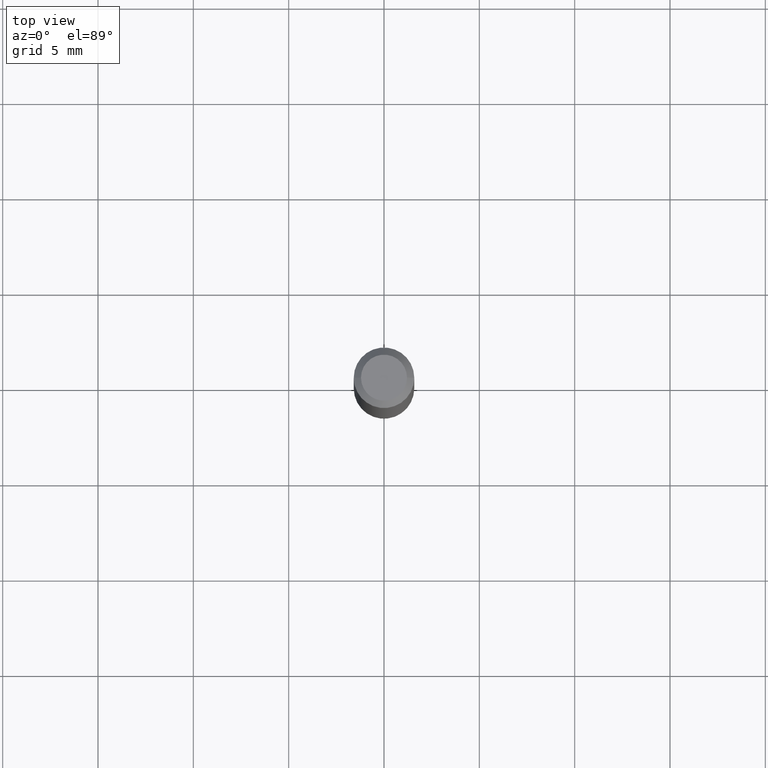
[diagram: clean part render]
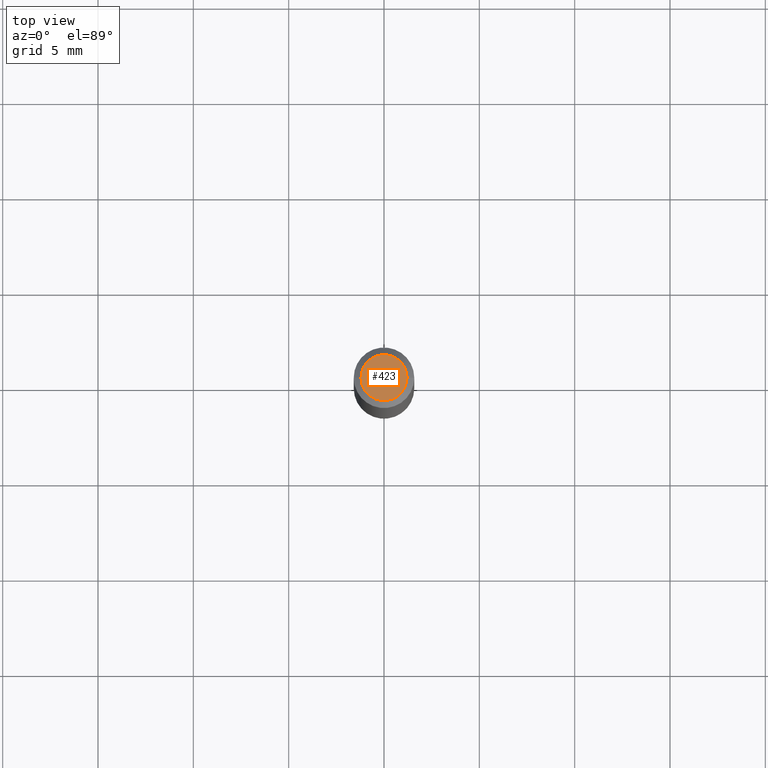
[diagram: same view with one face highlighted and labeled with its STEP entity id]
A machine part, top view. The second image highlights one B-rep face of the part: STEP entity #423.
In plain terms, the highlighted planar face has unit normal (0, -0, -1).
Its self-contained STEP definition (entity closure, byte-faithful):
#38 = DIRECTION ( 'NONE',  ( 1.000000000000000000, -6.982962677686267499E-15, 4.852736867747366768E-29 ) ) ;
#39 = CARTESIAN_POINT ( 'NONE',  ( 1.116338794773660675E-44, -1.593835938500131952E-30, -4.564927558880287530E-16 ) ) ;
#43 = EDGE_LOOP ( 'NONE', ( #314, #262 ) ) ;
#75 = VERTEX_POINT ( 'NONE', #416 ) ;
#88 = AXIS2_PLACEMENT_3D ( 'NONE', #321, #253, #38 ) ;
#148 = CARTESIAN_POINT ( 'NONE',  ( 3.316907271900976096E-16, 0.04749999999999999362, -3.940917415390638222E-16 ) ) ;
#152 = FACE_OUTER_BOUND ( 'NONE', #43, .T. ) ;
#163 = CIRCLE ( 'NONE', #88, 0.04749999999999999362 ) ;
#253 = DIRECTION ( 'NONE',  ( -2.445468806185136597E-29, 3.491481338843145583E-15, 1.000000000000000000 ) ) ;
#262 = ORIENTED_EDGE ( 'NONE', *, *, #352, .T. ) ;
#270 = DIRECTION ( 'NONE',  ( -1.000000000000000000, 6.982962677686265922E-15, -4.876176775795935793E-29 ) ) ;
#293 = DIRECTION ( 'NONE',  ( -2.445468806185136597E-29, 3.491481338843145583E-15, 1.000000000000000000 ) ) ;
#299 = PLANE ( 'NONE',  #460 ) ;
#302 = DIRECTION ( 'NONE',  ( 1.000000000000000000, -6.982962677686267499E-15, 4.852736867747366768E-29 ) ) ;
#304 = AXIS2_PLACEMENT_3D ( 'NONE', #39, #293, #302 ) ;
#314 = ORIENTED_EDGE ( 'NONE', *, *, #391, .T. ) ;
#321 = CARTESIAN_POINT ( 'NONE',  ( 1.116338794773660675E-44, -1.593835938500131952E-30, -4.564927558880287530E-16 ) ) ;
#329 = CIRCLE ( 'NONE', #304, 0.04749999999999999362 ) ;
#352 = EDGE_CURVE ( 'NONE', #373, #75, #163, .T. ) ;
#373 = VERTEX_POINT ( 'NONE', #408 ) ;
#391 = EDGE_CURVE ( 'NONE', #75, #373, #329, .T. ) ;
#408 = CARTESIAN_POINT ( 'NONE',  ( 0.04749999999999999362, -4.035134999187586019E-16, -4.564927558880262878E-16 ) ) ;
#416 = CARTESIAN_POINT ( 'NONE',  ( -0.04749999999999999362, 3.578768372314203110E-16, -4.564927558880312182E-16 ) ) ;
#423 = ADVANCED_FACE ( 'NONE', ( #152 ), #299, .F. ) ;
#450 = DIRECTION ( 'NONE',  ( 2.438088387897960049E-29, -3.491481338843145188E-15, -1.000000000000000000 ) ) ;
#460 = AXIS2_PLACEMENT_3D ( 'NONE', #148, #450, #270 ) ;